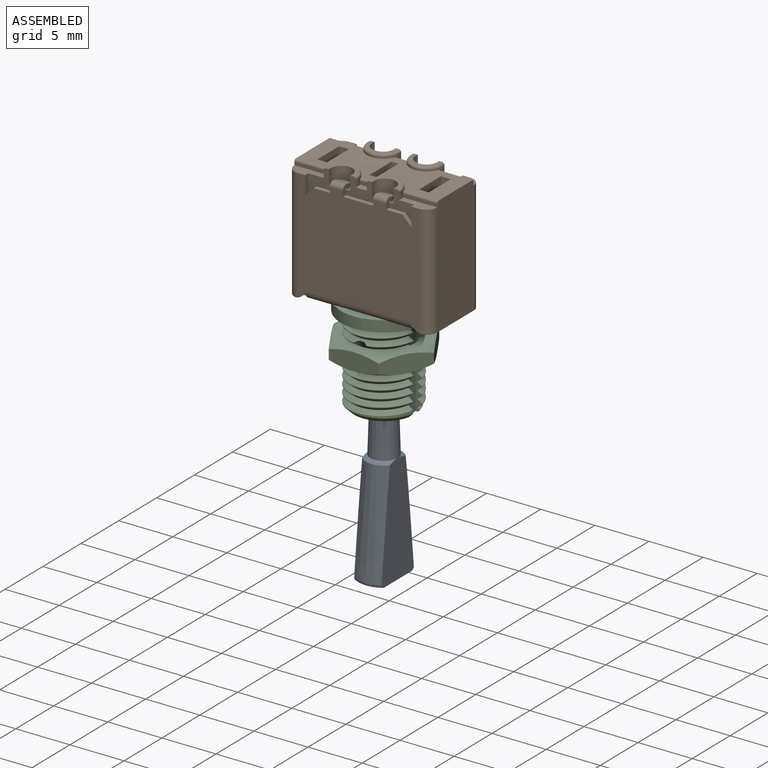
[diagram: assembled view]
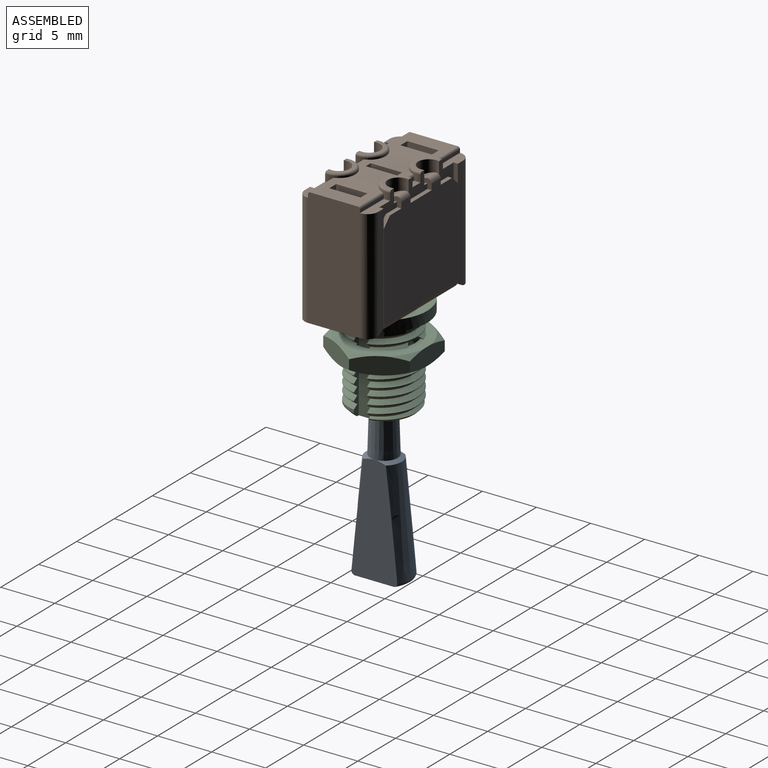
[diagram: assembled view, second angle]
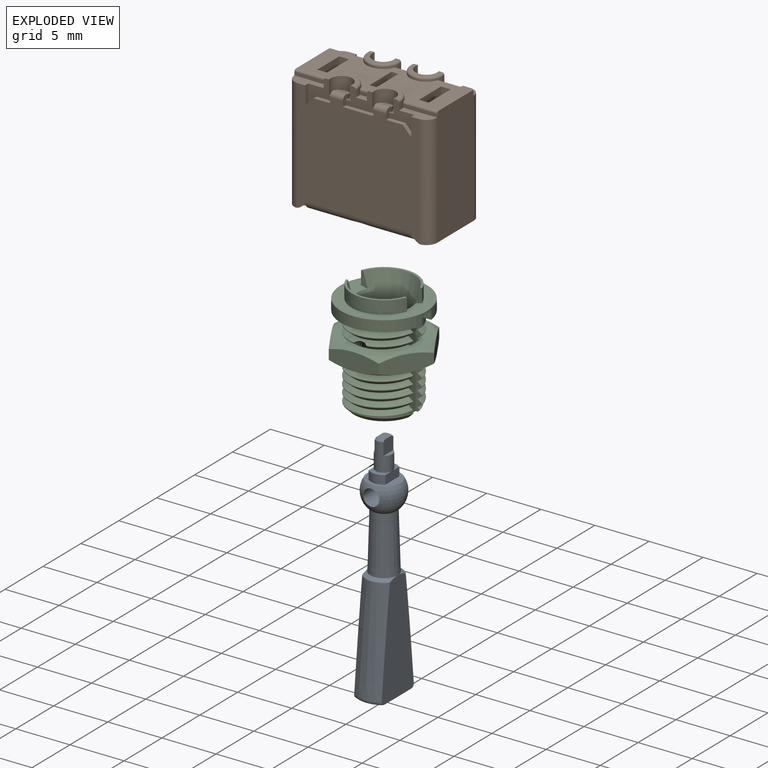
[diagram: exploded view]
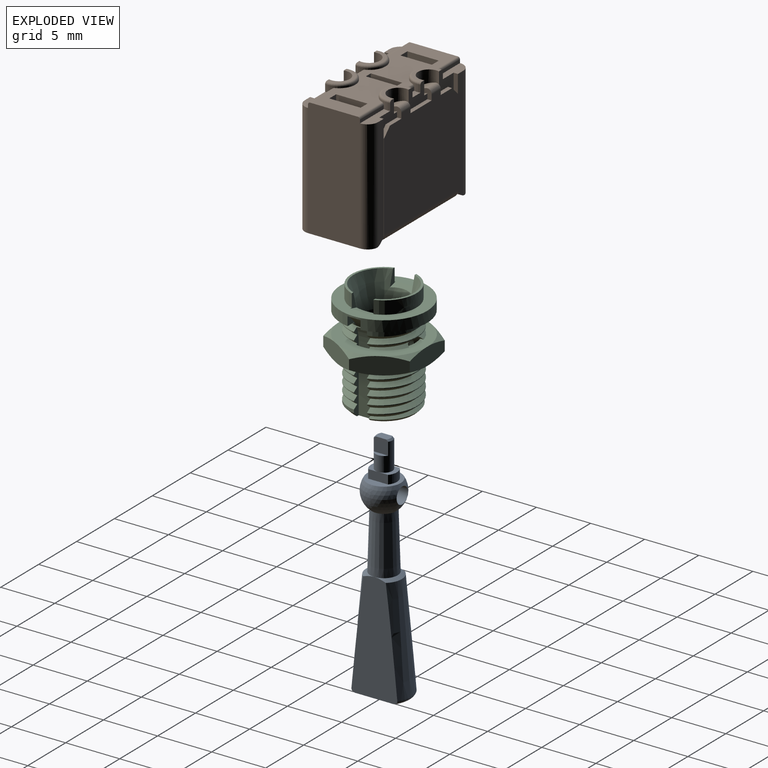
[diagram: exploded view, second angle]
ASSEMBLY  parts=3 mates=2
PART A: 27 faces, bbox 4.7x22.3x6.3 mm
  f0: torus R=2.17mm, axis (0,-1,0), area 1.3mm2, adj f20,f21,f22,f23
  f1: torus R=2.17mm, axis (0,-1,0), area 1.3mm2, adj f20,f21,f22,f25
  f2: cone r=0.7mm half-angle=45deg, axis (0,1,0), area 0.2mm2, adj f4,f5,f8,f9
  f3: cone r=0.7mm half-angle=45deg, axis (0,1,0), area 0.2mm2, adj f4,f5,f8,f9
  f4: cylinder r=0.78mm len=2.55mm, axis (0,1,0), area 8.8mm2, adj f2,f3,f5,f6,f7,f8,f10,f11
  f5: plane 1.34x1.31mm, normal (1,0,0), area 1.7mm2, adj f2,f3,f4,f6,f9
  f6: plane 1.33x0.38mm, normal (0,-1,0), area 0.4mm2, adj f4,f5
  f7: plane 1.33x0.38mm, normal (0,-1,0), area 0.4mm2, adj f4,f8
  f8: plane 1.34x1.31mm, normal (-1,0,0), area 1.7mm2, adj f2,f3,f4,f7,f9
  f9: plane 1.25x0.8mm, normal (0,-1,0), area 0.9mm2, adj f2,f3,f5,f8
  f10: plane 1.55x1.2mm, normal (0,-1,0), area 0.8mm2, adj f4,f12,f14,f15
  f11: plane 1.55x1.2mm, normal (0,-1,0), area 0.8mm2, adj f4,f12,f13,f14
  f12: plane 1.83x0.8mm, normal (1,0,0), area 1.5mm2, adj f10,f11,f13,f15,f16
  f13: cylinder r=1.2mm len=1.55mm, axis (0,1,0), area 1.3mm2, adj f11,f12,f14,f16
  f14: plane 1.83x0.8mm, normal (-1,0,0), area 1.5mm2, adj f10,f11,f13,f15,f16
  f15: cylinder r=1.2mm len=1.55mm, axis (0,1,0), area 1.3mm2, adj f10,f12,f14,f16
  f16: plane 3.11x3.11mm, normal (0,-1,0), area 4.2mm2, adj f12,f13,f14,f15,f17
  f17: sphere r=1.85mm, area 25.1mm2, adj f16,f18,f26
  f18: cone r=1.19mm half-angle=1.7deg, axis (0,1,0), area 39.6mm2, adj f17,f19,f24
  f19: cone r=1.46mm half-angle=60deg, axis (0,1,0), area 1.5mm2, adj f18,f20,f21,f25
  f20: plane 11.07x5.16mm, normal (1,0,0), area 32.6mm2, adj f0,f1,f19,f22,f23,f24,f25
  f21: plane 11.07x5.16mm, normal (-1,0,0), area 32.6mm2, adj f0,f1,f19,f22,f23,f24,f25
  f22: plane 4.35x2.54mm, normal (0,1,0), area 10.4mm2, adj f0,f1,f20,f21
  f23: cone r=2.06mm half-angle=4.9deg, axis (0,1,0), area 27.7mm2, adj f0,f20,f21,f24
  f24: cone r=1.46mm half-angle=60deg, axis (0,1,0), area 1.5mm2, adj f18,f20,f21,f23
  f25: cone r=2.06mm half-angle=4.9deg, axis (0,1,0), area 27.7mm2, adj f1,f19,f20,f21
  f26: cylinder r=0.75mm len=3.38mm, axis (0,0,-1), area 15.9mm2, adj f17
PART B: 228 faces, bbox 13.7x11.8x7.3 mm
  f0: plane 6.8x1.55mm, normal (0,1,0), area 2.9mm2, adj f1,f209,f210,f211,f212,f213,f214,f215
  f1: plane 0.83x0.41mm, normal (1,0,0), area 0.3mm2, adj f0,f2,f206,f207,f208,f227
  f2: plane 5.25x4.29mm, normal (0,-1,0), area 17.2mm2, adj f1,f3,f196,f197,f198,f199,f200,f201
  f3: plane 0.4x0.03mm, normal (0,0,1), area 0mm2, adj f2,f4,f196,f205
  f4: plane 2x0.5mm, normal (0,1,0), area 1mm2, adj f3,f5,f6,f202,f203,f204,f205
  f5: plane 0.22x0mm, normal (0,1,0), area 0mm2, adj f4,f6
  f6: plane 5.25x2.49mm, normal (0,1,0), area 5.7mm2, adj f4,f5,f7,f196,f201,f207,f208
  f7: cylinder r=0.8mm len=9.8mm, axis (1,0,0), area 11.1mm2, adj f6,f8,f187,f190,f191,f192,f193,f194
  f8: plane 5.25x2.49mm, normal (0,1,0), area 5.7mm2, adj f7,f9,f184,f185,f186,f195,f208
  f9: cylinder r=3.03mm len=1.63mm, axis (0,-1,0), area 0.9mm2, adj f8,f10,f15,f181
  f10: plane 0.4x0.03mm, normal (0,0,-1), area 0mm2, adj f9,f11,f15,f185
  f11: plane 0.4x0.33mm, normal (0,0,-1), area 0.1mm2, adj f10,f12,f15,f185
  f12: plane 2x0.4mm, normal (1,0,0), area 0.8mm2, adj f11,f13,f15,f185
  f13: plane 0.4x0.33mm, normal (0,0,1), area 0.1mm2, adj f12,f14,f15,f185
  f14: plane 0.4x0.03mm, normal (0,0,1), area 0mm2, adj f13,f15,f185,f186
  f15: plane 5.25x4.29mm, normal (0,-1,0), area 17.2mm2, adj f9,f10,f11,f12,f13,f14,f16,f176
  f16: plane 0.83x0.41mm, normal (-1,0,0), area 0.3mm2, adj f15,f17,f176,f195,f208,f227
  f17: plane 6.8x1.55mm, normal (0,1,0), area 2.9mm2, adj f16,f18,f164,f165,f166,f167,f168,f169
  f18: cylinder r=2mm len=1.6mm, axis (0,0,1), area 1.5mm2, adj f17,f19,f20,f225,f227
  f19: plane 5.7x0.9mm, normal (0,1,0), area 5.1mm2, adj f18,f20,f225,f226
  f20: plane 10.67x9.82mm, normal (0,0,-1), area 92.7mm2, adj f18,f19,f21,f129,f130,f131,f132,f133
  f21: plane 3.14x1mm, normal (0,-1,0), area 2.3mm2, adj f20,f22,f128,f133,f163,f174
  f22: cylinder r=1mm len=10.45mm, axis (0,-1,0), area 16.4mm2, adj f21,f23,f127,f173,f174
  f23: plane 6.76x0.79mm, normal (0,1,0), area 4mm2, adj f22,f24,f127,f169,f170,f171,f172,f173
  f24: cylinder r=1mm len=10.45mm, axis (0,-1,0), area 16.4mm2, adj f23,f25,f127,f168,f169
  f25: plane 3.14x1mm, normal (0,-1,0), area 2.3mm2, adj f24,f26,f124,f125,f126,f168
  f26: plane 10.67x9.82mm, normal (0,0,1), area 92.7mm2, adj f25,f27,f94,f95,f96,f97,f98,f99
  f27: plane 3.14x1mm, normal (0,-1,0), area 2.3mm2, adj f26,f28,f93,f98,f105,f216
  f28: cylinder r=1mm len=10.45mm, axis (0,-1,0), area 16.4mm2, adj f27,f29,f31,f215,f216
  f29: plane 6.76x0.79mm, normal (0,1,0), area 4mm2, adj f28,f30,f31,f211,f212,f213,f214,f215
  f30: cylinder r=1mm len=10.45mm, axis (0,-1,0), area 16.4mm2, adj f29,f31,f140,f210,f211
  f31: plane 10.95x4.8mm, normal (1,0,0), area 52.5mm2, adj f28,f29,f30,f32,f33,f91,f92,f93
  f32: cylinder r=0.2mm len=3.2mm, axis (-1,0,0), area 1mm2, adj f31,f33,f92,f139
  f33: plane 13.2x4.4mm, normal (0,-1,0), area 43.3mm2, adj f31,f32,f34,f74,f75,f76,f77,f78
  f34: plane 2.9x2.35mm, normal (-1,0,0), area 3.2mm2, adj f33,f35,f36,f37,f38,f74,f76
  f35: cylinder r=1mm len=1.85mm, axis (0,1,0), area 1mm2, adj f34,f36,f38
  f36: plane 2.44x2.34mm, normal (-0.97,0.26,0), area 1.4mm2, adj f34,f35,f37,f38
  f37: cylinder r=1mm len=1.85mm, axis (0,1,0), area 1mm2, adj f34,f36,f38
  f38: plane 4.2x1.65mm, normal (0,1,0), area 6.6mm2, adj f34,f35,f36,f37,f39,f43,f73,f221
  f39: plane 1.48x0.65mm, normal (1,0,0), area 0.7mm2, adj f38,f40,f225
  f40: cylinder r=2mm len=1.55mm, axis (-1,0,0), area 2.4mm2, adj f39,f41,f76,f164,f165,f225
  f41: plane 2.9x0.65mm, normal (0,1,0), area 1.9mm2, adj f40,f42,f75,f165
  f42: cylinder r=2mm len=1.55mm, axis (1,0,0), area 2.4mm2, adj f41,f73,f74,f165,f166,f221
  f43: plane 4.2x0.39mm, normal (-1,0,0), area 1.6mm2, adj f38,f44,f221,f225
  f44: plane 4.27x0.87mm, normal (-0.26,0.97,0), area 2.6mm2, adj f43,f45,f46,f47,f48,f49
  f45: cylinder r=7.8mm len=2.84mm, axis (-1,0,0), area 0.6mm2, adj f44,f46,f49,f221
  f46: torus R=7.2mm, axis (1,0,0), area 2.1mm2, adj f44,f45,f221
  f47: torus R=7.2mm, axis (-1,0,0), area 2.1mm2, adj f44,f48,f225
  f48: cylinder r=7.8mm len=2.84mm, axis (1,0,0), area 0.6mm2, adj f44,f47,f49,f225
  f49: plane 4.2x3.69mm, normal (1,0,0), area 5.9mm2, adj f44,f45,f48,f50,f221,f225
  f50: plane 4.2x3.6mm, normal (0,1,0), area 12.5mm2, adj f49,f51,f52,f53,f54,f55,f56,f57
  f51: cylinder r=1mm len=1.55mm, axis (0,1,0), area 0.7mm2, adj f50,f52,f81
  f52: plane 2.4x1.98mm, normal (0.97,0.26,0), area 1.3mm2, adj f50,f51,f53,f81
  f53: cylinder r=1mm len=1.55mm, axis (0,1,0), area 0.7mm2, adj f50,f52,f81
  f54: cylinder r=1mm len=1.55mm, axis (0,-1,0), area 0.7mm2, adj f50,f55,f83
  f55: plane 2.4x1.98mm, normal (-0.97,0.26,0), area 1.3mm2, adj f50,f54,f56,f83
  f56: cylinder r=1mm len=1.55mm, axis (0,-1,0), area 0.7mm2, adj f50,f55,f83
  f57: plane 4.2x3.69mm, normal (-1,0,0), area 5.9mm2, adj f50,f58,f71,f72,f221,f225
  f58: plane 4.27x0.87mm, normal (0.26,0.97,0), area 2.6mm2, adj f57,f59,f69,f70,f71,f72
  f59: plane 4.2x0.39mm, normal (1,0,0), area 1.6mm2, adj f58,f60,f221,f225
  f60: plane 4.2x1.65mm, normal (0,1,0), area 6.6mm2, adj f59,f61,f62,f63,f64,f68,f77,f221
  f61: cylinder r=1mm len=1.85mm, axis (0,-1,0), area 1mm2, adj f60,f62,f77
  f62: plane 2.44x2.34mm, normal (0.97,0.26,0), area 1.4mm2, adj f60,f61,f63,f77
  f63: cylinder r=1mm len=1.85mm, axis (0,-1,0), area 1mm2, adj f60,f62,f77
  f64: plane 1.48x0.65mm, normal (-1,0,0), area 0.7mm2, adj f60,f65,f221
  f65: cylinder r=2mm len=1.55mm, axis (1,0,0), area 2.4mm2, adj f64,f66,f80,f221,f222,f223
  f66: plane 2.9x0.65mm, normal (0,1,0), area 1.9mm2, adj f65,f67,f79,f223
  f67: cylinder r=2mm len=1.55mm, axis (-1,0,0), area 2.4mm2, adj f66,f68,f78,f223,f224,f225
  f68: plane 1.48x0.65mm, normal (-1,0,0), area 0.7mm2, adj f60,f67,f225
  f69: torus R=7.2mm, axis (1,0,0), area 2.1mm2, adj f58,f71,f221
  f70: torus R=7.2mm, axis (-1,0,0), area 2.1mm2, adj f58,f72,f225
  f71: cylinder r=7.8mm len=2.84mm, axis (-1,0,0), area 0.6mm2, adj f57,f58,f69,f221
  f72: cylinder r=7.8mm len=2.84mm, axis (1,0,0), area 0.6mm2, adj f57,f58,f70,f225
  f73: plane 1.48x0.65mm, normal (1,0,0), area 0.7mm2, adj f38,f42,f221
  f74: plane 2.35x0.9mm, normal (0,0,-1), area 2.1mm2, adj f33,f34,f42,f75
  f75: plane 2.9x2.35mm, normal (1,0,0), area 6.8mm2, adj f33,f41,f74,f76
  f76: plane 2.35x0.9mm, normal (0,0,1), area 2.1mm2, adj f33,f34,f40,f75
  f77: plane 2.9x2.35mm, normal (1,0,0), area 3.2mm2, adj f33,f60,f61,f62,f63,f78,f80
  f78: plane 2.35x0.9mm, normal (0,0,1), area 2.1mm2, adj f33,f67,f77,f79
  f79: plane 2.9x2.35mm, normal (-1,0,0), area 6.8mm2, adj f33,f66,f78,f80
  f80: plane 2.35x0.9mm, normal (0,0,-1), area 2.1mm2, adj f33,f65,f77,f79
  f81: plane 2.9x2.05mm, normal (1,0,0), area 2.9mm2, adj f33,f50,f51,f52,f53,f82,f84
  f82: plane 2.05x0.65mm, normal (0,0,1), area 1.3mm2, adj f33,f50,f81,f83
  f83: plane 2.9x2.05mm, normal (-1,0,0), area 2.9mm2, adj f33,f50,f54,f55,f56,f82,f84
  f84: plane 2.05x0.65mm, normal (0,0,-1), area 1.3mm2, adj f33,f50,f81,f83
  f85: cylinder r=0.2mm len=3.2mm, axis (1,0,0), area 1mm2, adj f33,f124,f125,f127
  f86: cylinder r=0.2mm len=1.21mm, axis (1,0,0), area 0.4mm2, adj f33,f87,f98,f124
  f87: plane 1.08x0.3mm, normal (0,0,1), area 0.3mm2, adj f86,f98,f99,f124
  f88: cylinder r=0.2mm len=1.21mm, axis (-1,0,0), area 0.4mm2, adj f33,f89,f133,f139
  f89: plane 1.08x0.3mm, normal (0,0,-1), area 0.3mm2, adj f88,f133,f134,f139
  f90: cylinder r=0.2mm len=3.2mm, axis (-1,0,0), area 1mm2, adj f33,f127,f128,f133
  f91: cylinder r=0.2mm len=3.2mm, axis (1,0,0), area 1mm2, adj f31,f33,f93,f98
  f92: plane 3.14x0.3mm, normal (0,0,-1), area 0.9mm2, adj f31,f32,f139,f140
  f93: plane 3.14x0.3mm, normal (0,0,1), area 0.9mm2, adj f27,f31,f91,f98
  f94: plane 2.16x1.39mm, normal (0,-0.97,-0.26), area 2.1mm2, adj f26,f95
  f95: cylinder r=1mm len=2mm, axis (0,1,0), area 5.2mm2, adj f26,f94,f96
  f96: plane 2.6x1.55mm, normal (0,-1,0), area 1.2mm2, adj f26,f95,f97
  f97: torus R=1.3mm, axis (0,-1,0), area 1.6mm2, adj f26,f96,f98
  f98: cylinder r=1.5mm len=3mm, axis (0,1,0), area 1.4mm2, adj f26,f27,f33,f86,f87,f91,f93,f97
  f99: plane 1.08x0.6mm, normal (0,-1,0), area 0.6mm2, adj f26,f87,f98,f124
  f100: plane 2.16x1.39mm, normal (0,-0.97,-0.26), area 2.1mm2, adj f26,f101
  f101: cylinder r=1mm len=2mm, axis (0,1,0), area 5.2mm2, adj f26,f100,f102
  f102: plane 2.6x1.55mm, normal (0,-1,0), area 1.2mm2, adj f26,f101,f103
  f103: torus R=1.3mm, axis (0,-1,0), area 1.6mm2, adj f26,f102,f124
  f104: plane 5.7x0.9mm, normal (0,1,0), area 5.1mm2, adj f26,f167,f220,f221
  f105: plane 9.8x0.4mm, normal (-1,0,0), area 0.9mm2, adj f26,f27,f106,f123,f216,f219
  f106: plane 9.8x9.31mm, normal (0,0,-1), area 86.8mm2, adj f105,f107,f111,f112,f113,f117,f118,f119
  f107: plane 1.2x0.83mm, normal (0,0.97,0.26), area 0.9mm2, adj f106,f108,f111,f122
  f108: cylinder r=0.6mm len=1.2mm, axis (0,-0.97,-0.26), area 0.8mm2, adj f107,f109,f111,f122
  f109: plane 1.2x0.83mm, normal (0,-0.97,-0.26), area 0.9mm2, adj f108,f110,f111,f122
  f110: cylinder r=0.4mm len=1.2mm, axis (-1,0,0), area 0.9mm2, adj f109,f111,f122,f191
  f111: plane 0.91x0.75mm, normal (1,0,0), area 0.5mm2, adj f106,f107,f108,f109,f110,f112,f191
  f112: plane 2.8x0.4mm, normal (0,-1,0), area 1.1mm2, adj f106,f111,f113,f191
  f113: plane 0.91x0.75mm, normal (-1,0,0), area 0.5mm2, adj f106,f112,f114,f115,f116,f117,f191
  f114: cylinder r=0.4mm len=1.2mm, axis (-1,0,0), area 0.9mm2, adj f113,f115,f118,f191
  f115: plane 1.2x0.83mm, normal (0,-0.97,-0.26), area 0.9mm2, adj f113,f114,f116,f118
  f116: cylinder r=0.6mm len=1.2mm, axis (0,0.97,0.26), area 0.8mm2, adj f113,f115,f117,f118
  f117: plane 1.2x0.83mm, normal (0,0.97,0.26), area 0.9mm2, adj f106,f113,f116,f118
  f118: plane 0.91x0.75mm, normal (1,0,0), area 0.5mm2, adj f106,f114,f115,f116,f117,f119,f191
  f119: plane 1.5x0.4mm, normal (0,-1,0), area 0.6mm2, adj f106,f118,f123,f191
  f120: plane 0.8x0.8mm, normal (-0.71,-0.71,0), area 0.5mm2, adj f106,f121,f126,f191,f192
  f121: plane 1.5x0.4mm, normal (0,-1,0), area 0.6mm2, adj f106,f120,f122,f191
  f122: plane 0.91x0.75mm, normal (-1,0,0), area 0.5mm2, adj f106,f107,f108,f109,f110,f121,f191
  f123: plane 0.8x0.8mm, normal (0.71,-0.71,0), area 0.5mm2, adj f105,f106,f119,f190,f191
  f124: cylinder r=1.5mm len=3mm, axis (0,1,0), area 1.4mm2, adj f25,f26,f33,f85,f86,f87,f99,f103
  f125: plane 3.14x0.3mm, normal (0,0,1), area 0.9mm2, adj f25,f85,f124,f127
  f126: plane 9.8x0.4mm, normal (1,0,0), area 0.9mm2, adj f25,f26,f106,f120,f168,f219
  f127: plane 10.95x4.8mm, normal (-1,0,0), area 52.5mm2, adj f22,f23,f24,f33,f85,f90,f125,f128
  f128: plane 3.14x0.3mm, normal (0,0,-1), area 0.9mm2, adj f21,f90,f127,f133
  f129: plane 2.16x1.39mm, normal (0,-0.97,0.26), area 2.1mm2, adj f20,f130
  f130: cylinder r=1mm len=2mm, axis (0,1,0), area 5.2mm2, adj f20,f129,f131
  f131: plane 2.6x1.55mm, normal (0,-1,0), area 1.2mm2, adj f20,f130,f132
  f132: torus R=1.3mm, axis (0,-1,0), area 1.6mm2, adj f20,f131,f133
  f133: cylinder r=1.5mm len=3mm, axis (0,1,0), area 1.4mm2, adj f20,f21,f33,f88,f89,f90,f128,f132
  f134: plane 1.08x0.6mm, normal (0,-1,0), area 0.6mm2, adj f20,f89,f133,f139
  f135: plane 2.16x1.39mm, normal (0,-0.97,0.26), area 2.1mm2, adj f20,f136
  f136: cylinder r=1mm len=2mm, axis (0,1,0), area 5.2mm2, adj f20,f135,f137
  f137: plane 2.6x1.55mm, normal (0,-1,0), area 1.2mm2, adj f20,f136,f138
  f138: torus R=1.3mm, axis (0,-1,0), area 1.6mm2, adj f20,f137,f139
  f139: cylinder r=1.5mm len=3mm, axis (0,1,0), area 1.4mm2, adj f20,f32,f33,f88,f89,f92,f134,f138
  f140: plane 3.14x1mm, normal (0,-1,0), area 2.3mm2, adj f20,f30,f92,f139,f141,f210
  f141: plane 9.8x0.4mm, normal (-1,0,0), area 0.9mm2, adj f20,f140,f142,f162,f210,f227
  f142: plane 0.8x0.8mm, normal (0.71,-0.71,0), area 0.5mm2, adj f141,f143,f160,f161,f162
  f143: plane 9.8x9.31mm, normal (0,0,-1), area 86.8mm2, adj f142,f144,f148,f149,f150,f154,f155,f156
  f144: cylinder r=0.4mm len=1.2mm, axis (1,0,0), area 0.9mm2, adj f143,f145,f148,f159
  f145: plane 1.2x0.83mm, normal (0,-0.97,0.26), area 0.9mm2, adj f144,f146,f148,f159
  f146: cylinder r=0.6mm len=1.2mm, axis (0,0.97,-0.26), area 0.8mm2, adj f145,f147,f148,f159
  f147: plane 1.2x0.83mm, normal (0,0.97,-0.26), area 0.9mm2, adj f146,f148,f159,f162
  f148: plane 0.91x0.75mm, normal (1,0,0), area 0.5mm2, adj f143,f144,f145,f146,f147,f149,f162
  f149: plane 2.8x0.4mm, normal (0,-1,0), area 1.1mm2, adj f143,f148,f150,f162
  f150: plane 0.9x0.76mm, normal (-1,0,0), area 0.5mm2, adj f143,f149,f151,f152,f153,f154,f162
  f151: plane 1.2x0.84mm, normal (0,0.97,-0.26), area 0.9mm2, adj f150,f152,f155,f162
  f152: cylinder r=0.6mm len=1.2mm, axis (0,-0.97,0.26), area 0.8mm2, adj f150,f151,f153,f155
  f153: plane 1.2x0.84mm, normal (0,-0.97,0.26), area 0.9mm2, adj f150,f152,f154,f155
  f154: cylinder r=0.4mm len=1.2mm, axis (1,0,0), area 0.9mm2, adj f143,f150,f153,f155
  f155: plane 0.9x0.76mm, normal (1,0,0), area 0.5mm2, adj f143,f151,f152,f153,f154,f160,f162
  f156: plane 8.2x0.03mm, normal (-1,0,0), area 0.2mm2, adj f143,f157,f174,f208
  f157: plane 0.8x0.8mm, normal (-0.71,-0.71,0), area 0.5mm2, adj f143,f156,f158,f162,f163
  f158: plane 1.5x0.4mm, normal (0,-1,0), area 0.6mm2, adj f143,f157,f159,f162
  f159: plane 0.91x0.75mm, normal (-1,0,0), area 0.5mm2, adj f143,f144,f145,f146,f147,f158,f162
  f160: plane 1.5x0.4mm, normal (0,-1,0), area 0.6mm2, adj f142,f143,f155,f162
  f161: plane 8.2x0.03mm, normal (1,0,0), area 0.2mm2, adj f142,f143,f208,f210
  f162: plane 9.8x9.31mm, normal (0,0,1), area 86.8mm2, adj f141,f142,f147,f148,f149,f150,f151,f155
  f163: plane 9.8x0.4mm, normal (1,0,0), area 0.9mm2, adj f20,f21,f157,f162,f174,f227
  f164: plane 7.51x0.57mm, normal (0.71,0,0.71), area 5mm2, adj f17,f40,f165,f225
  f165: plane 8.2x3.2mm, normal (1,0,0), area 26.1mm2, adj f17,f40,f41,f42,f164,f166
  f166: plane 7.51x0.57mm, normal (0.71,0,-0.71), area 5mm2, adj f17,f42,f165,f221
  f167: cylinder r=2mm len=1.6mm, axis (0,0,1), area 1.5mm2, adj f17,f26,f104,f219,f221
  f168: plane 10.41x0.7mm, normal (0,0,1), area 7.1mm2, adj f17,f24,f25,f126,f169,f192,f193
  f169: cylinder r=1mm len=0.88mm, axis (0,0,1), area 0.7mm2, adj f17,f23,f24,f168,f170
  f170: plane 0.9x0.4mm, normal (0,0,-1), area 0.3mm2, adj f17,f23,f169,f171
  f171: plane 5.04x0.4mm, normal (1,0,0), area 2mm2, adj f17,f23,f170,f172
  f172: plane 0.9x0.4mm, normal (0,0,1), area 0.3mm2, adj f17,f23,f171,f173
  f173: cylinder r=1mm len=0.88mm, axis (0,0,1), area 0.7mm2, adj f17,f22,f23,f172,f174
  f174: plane 10.41x0.7mm, normal (0,0,-1), area 7.1mm2, adj f17,f21,f22,f156,f163,f173,f175
  f175: plane 0.19x0.07mm, normal (1,0,0), area 0mm2, adj f17,f174,f208
  f176: plane 0.4x0.3mm, normal (0,0,-1), area 0.1mm2, adj f15,f16,f177,f195
  f177: plane 0.6x0.6mm, normal (-0.71,0,-0.71), area 0.3mm2, adj f15,f176,f178,f195
  f178: plane 3.79x0.4mm, normal (-1,0,0), area 1.5mm2, adj f15,f177,f179,f195
  f179: plane 0.6x0.6mm, normal (-0.71,0,0.71), area 0.3mm2, adj f15,f178,f180,f195
  f180: plane 0.4x0.3mm, normal (0,0,1), area 0.1mm2, adj f15,f179,f194,f195
  f181: bspline ~3.03x0.57mm, area 1mm2, adj f9,f182,f201,f208,f227
  f182: bspline ~3.03x0.57mm, area 0mm2, adj f181,f183
  f183: cylinder r=0.4mm len=2.51mm, axis (1,0,0), area 6.3mm2, adj f182,f227
  f184: plane 0.22x0mm, normal (0,1,0), area 0mm2, adj f8,f185
  f185: plane 2x0.5mm, normal (0,1,0), area 1mm2, adj f8,f10,f11,f12,f13,f14,f184
  f186: cylinder r=3.03mm len=1.63mm, axis (0,-1,0), area 0.9mm2, adj f8,f14,f15,f187
  f187: bspline ~3.03x0.57mm, area 1mm2, adj f7,f186,f188,f196,f219
  f188: bspline ~3.03x0.57mm, area 0mm2, adj f187,f189
  f189: cylinder r=0.4mm len=2.51mm, axis (1,0,0), area 6.3mm2, adj f188,f219
  f190: plane 8.2x0.03mm, normal (1,0,0), area 0.2mm2, adj f7,f123,f191,f216
  f191: plane 9.8x9.31mm, normal (0,0,1), area 86.8mm2, adj f7,f110,f111,f112,f113,f114,f118,f119
  f192: plane 8.2x0.03mm, normal (-1,0,0), area 0.2mm2, adj f7,f120,f168,f191
  f193: plane 0.19x0.07mm, normal (1,0,0), area 0mm2, adj f7,f17,f168
  f194: plane 0.83x0.41mm, normal (-1,0,0), area 0.3mm2, adj f7,f15,f17,f180,f195,f219
  f195: plane 5.25x2.78mm, normal (0,1,0), area 10.5mm2, adj f7,f8,f16,f176,f177,f178,f179,f180
  f196: cylinder r=3.03mm len=1.63mm, axis (0,-1,0), area 0.9mm2, adj f2,f3,f6,f187
  f197: plane 0.4x0.3mm, normal (0,0,1), area 0.1mm2, adj f2,f198,f207,f218
  f198: plane 0.6x0.6mm, normal (0.71,0,0.71), area 0.3mm2, adj f2,f197,f199,f207
  f199: plane 3.79x0.4mm, normal (1,0,0), area 1.5mm2, adj f2,f198,f200,f207
  f200: plane 0.6x0.6mm, normal (0.71,0,-0.71), area 0.3mm2, adj f2,f199,f206,f207
  f201: cylinder r=3.03mm len=1.63mm, axis (0,-1,0), area 0.9mm2, adj f2,f6,f181,f202
  f202: plane 0.4x0.03mm, normal (0,0,-1), area 0mm2, adj f2,f4,f201,f203
  f203: plane 0.4x0.33mm, normal (0,0,-1), area 0.1mm2, adj f2,f4,f202,f204
  f204: plane 2x0.4mm, normal (-1,0,0), area 0.8mm2, adj f2,f4,f203,f205
  f205: plane 0.4x0.33mm, normal (0,0,1), area 0.1mm2, adj f2,f3,f4,f204
  f206: plane 0.4x0.3mm, normal (0,0,-1), area 0.1mm2, adj f1,f2,f200,f207
  f207: plane 5.25x2.78mm, normal (0,1,0), area 10.5mm2, adj f1,f6,f7,f197,f198,f199,f200,f206
  f208: cylinder r=0.8mm len=9.8mm, axis (1,0,0), area 11.1mm2, adj f1,f6,f8,f16,f143,f156,f161,f175
  f209: plane 0.19x0.07mm, normal (-1,0,0), area 0mm2, adj f0,f208,f210
  f210: plane 10.41x0.7mm, normal (0,0,-1), area 7.1mm2, adj f0,f30,f140,f141,f161,f209,f211
  f211: cylinder r=1mm len=0.88mm, axis (0,0,1), area 0.7mm2, adj f0,f29,f30,f210,f212
  f212: plane 0.9x0.4mm, normal (0,0,1), area 0.3mm2, adj f0,f29,f211,f213
  f213: plane 5.04x0.4mm, normal (-1,0,0), area 2mm2, adj f0,f29,f212,f214
  f214: plane 0.9x0.4mm, normal (0,0,-1), area 0.3mm2, adj f0,f29,f213,f215
  f215: cylinder r=1mm len=0.88mm, axis (0,0,1), area 0.7mm2, adj f0,f28,f29,f214,f216
  f216: plane 10.41x0.7mm, normal (0,0,1), area 7.1mm2, adj f0,f27,f28,f105,f190,f215,f217
  f217: plane 0.19x0.07mm, normal (-1,0,0), area 0mm2, adj f0,f7,f216
  f218: plane 0.83x0.41mm, normal (1,0,0), area 0.3mm2, adj f0,f2,f7,f197,f207,f219
  f219: cylinder r=0.4mm len=9.8mm, axis (1,0,0), area 4.6mm2, adj f0,f2,f15,f17,f26,f105,f106,f126
  f220: cylinder r=2mm len=1.6mm, axis (0,0,1), area 1.5mm2, adj f0,f26,f104,f219,f221
  f221: plane 10.6x8.5mm, normal (0,0,-1), area 74.6mm2, adj f0,f17,f38,f42,f43,f45,f46,f49
  f222: plane 7.51x0.57mm, normal (-0.71,0,-0.71), area 5mm2, adj f0,f65,f221,f223
  f223: plane 8.2x3.2mm, normal (-1,0,0), area 26.1mm2, adj f0,f65,f66,f67,f222,f224
  f224: plane 7.51x0.57mm, normal (-0.71,0,0.71), area 5mm2, adj f0,f67,f223,f225
  f225: plane 10.6x8.5mm, normal (0,0,1), area 74.6mm2, adj f0,f17,f18,f19,f38,f39,f40,f43
  f226: cylinder r=2mm len=1.6mm, axis (0,0,1), area 1.5mm2, adj f0,f19,f20,f225,f227
  f227: cylinder r=0.4mm len=9.8mm, axis (1,0,0), area 4.6mm2, adj f0,f1,f2,f15,f16,f17,f18,f20
PART C: 116 faces, bbox 9.5x10.5x9.5 mm
  f0: cone r=3.01mm half-angle=60deg, axis (0,1,0), area 4.1mm2, adj f1,f109,f111,f112,f113,f114,f115
  f1: cylinder r=1.05mm len=0.24mm, axis (0,0,-1), area 0mm2, adj f0,f2,f113,f115
  f2: cone r=0.9mm half-angle=30deg, axis (0,0,-1), area 3.1mm2, adj f1,f3,f76,f77,f96,f97,f98,f99
  f3: cylinder r=1.05mm len=1.72mm, axis (0,0,-1), area 0.5mm2, adj f2,f4,f74,f75,f76,f107
  f4: cylinder r=3.17mm len=2.57mm, axis (0,1,0), area 0.2mm2, adj f3,f5,f74,f107
  f5: plane 7.47x0.63mm, normal (0,0,1), area 2.9mm2, adj f4,f6,f50,f51,f52,f53,f54,f55
  f6: bspline ~6.34x6.29mm, area 9.6mm2, adj f5,f7,f9,f10,f50,f74,f109
  f7: bspline ~2.92x2.88mm, area 1mm2, adj f6,f8,f10,f77,f109
  f8: cylinder r=1.05mm len=0.18mm, axis (0,0,-1), area 0mm2, adj f7,f10,f77
  f9: cylinder r=1.05mm len=1.09mm, axis (0,0,-1), area 0.1mm2, adj f6,f10
  f10: cone r=0.9mm half-angle=30deg, axis (0,0,1), area 3.1mm2, adj f6,f7,f8,f9,f11,f12,f13,f14
  f11: bspline ~5.94x3.43mm, area 1mm2, adj f10,f12,f99,f115
  f12: bspline ~5.92x3.13mm, area 1mm2, adj f10,f11,f98,f115
  f13: cylinder r=1.05mm len=0.27mm, axis (0,0,-1), area 0mm2, adj f10,f74,f77
  f14: bspline ~2.8x2.64mm, area 0.4mm2, adj f10,f15,f109,f115
  f15: bspline ~2.11x1.86mm, area 0.4mm2, adj f10,f14,f109,f115
  f16: bspline ~2.95x2.76mm, area 0.5mm2, adj f10,f17,f109,f115
  f17: bspline ~3.14x3.02mm, area 0.5mm2, adj f10,f16,f109,f115
  f18: cylinder r=0.75mm len=1.5mm, axis (0,0,-1), area 1.5mm2, adj f10,f19
  f19: cylinder r=2mm len=5.93mm, axis (0,1,0), area 70.9mm2, adj f18,f20,f21,f108
  f20: cone r=2.12mm half-angle=11deg, axis (0,1,0), area 17.5mm2, adj f19,f54
  f21: cone r=2.4mm half-angle=15deg, axis (0,-1,0), area 40.7mm2, adj f19,f22,f43,f44,f45,f46,f47,f48
  f22: cylinder r=10mm len=2mm, axis (0,0,1), area 1.4mm2, adj f21,f23,f24,f43,f49
  f23: cylinder r=10mm len=0.22mm, axis (0,0,1), area 0mm2, adj f22,f24
  f24: plane 5.25x2.49mm, normal (0,-1,0), area 5.7mm2, adj f22,f23,f25,f32,f38,f43,f49
  f25: plane 6.04x3mm, normal (0,-1,0), area 5.2mm2, adj f24,f26,f30,f32,f43,f45
  f26: cylinder r=3mm len=5.66mm, axis (0,1,0), area 8.5mm2, adj f25,f27,f28,f29,f43,f44,f45
  f27: cylinder r=3mm len=2.51mm, axis (0,1,0), area 0mm2, adj f26
  f28: plane 0.4x0.33mm, normal (0,0,-1), area 0.1mm2, adj f26,f43
  f29: plane 0.4x0.33mm, normal (0,0,-1), area 0.1mm2, adj f26,f45
  f30: plane 5.25x2.49mm, normal (0,-1,0), area 5.7mm2, adj f25,f31,f32,f38,f45,f46,f47
  f31: cylinder r=10mm len=0.22mm, axis (0,0,1), area 0mm2, adj f30,f46
  f32: cylinder r=4mm len=8mm, axis (0,1,0), area 24.1mm2, adj f24,f25,f30,f33,f37,f38,f52,f109
  f33: plane 1.17x1.11mm, normal (0,0,1), area 0.4mm2, adj f32,f34,f36,f37,f52
  f34: bspline ~6.35x6.35mm, area 10mm2, adj f33,f35,f36,f51,f52,f109
  f35: plane 0.1x0.09mm, normal (0,0,-1), area 0mm2, adj f34,f51,f52
  f36: cylinder r=3.17mm len=6.35mm, axis (0,1,0), area 8.6mm2, adj f33,f34,f37,f109
  f37: plane 8x7.95mm, normal (0,1,0), area 17.6mm2, adj f32,f33,f36,f109
  f38: plane 6.04x3mm, normal (0,-1,0), area 5.2mm2, adj f24,f30,f32,f39,f47,f49
  f39: cylinder r=3mm len=5.66mm, axis (0,1,0), area 8.5mm2, adj f38,f40,f41,f42,f47,f48,f49
  f40: cylinder r=3mm len=2.51mm, axis (0,1,0), area 0mm2, adj f39
  f41: plane 0.4x0.33mm, normal (0,0,1), area 0.1mm2, adj f39,f47
  f42: plane 0.4x0.33mm, normal (0,0,1), area 0.1mm2, adj f39,f49
  f43: plane 1.45x0.83mm, normal (0,0,-1), area 0.4mm2, adj f21,f22,f24,f25,f26,f28,f44
  f44: plane 5.66x2mm, normal (0,-1,0), area 1.4mm2, adj f21,f26,f43,f45
  f45: plane 1.45x0.83mm, normal (0,0,-1), area 0.4mm2, adj f21,f25,f26,f29,f30,f44,f46
  f46: cylinder r=10mm len=2mm, axis (0,0,1), area 1.4mm2, adj f21,f30,f31,f45,f47
  f47: plane 1.45x0.83mm, normal (0,0,1), area 0.4mm2, adj f21,f30,f38,f39,f41,f46,f48
  f48: plane 5.66x2mm, normal (0,-1,0), area 1.4mm2, adj f21,f39,f47,f49
  f49: plane 1.45x0.83mm, normal (0,0,1), area 0.4mm2, adj f21,f22,f24,f38,f39,f42,f48
  f50: cylinder r=3.17mm len=6.35mm, axis (0,1,0), area 1mm2, adj f5,f6,f51,f109
  f51: bspline ~6.35x6.35mm, area 9.4mm2, adj f5,f34,f35,f50,f52,f109
  f52: cylinder r=3mm len=2.6mm, axis (0,0,1), area 3.7mm2, adj f5,f32,f33,f34,f35,f51,f53,f109
  f53: plane 6.25x1.2mm, normal (1,0,0), area 7.5mm2, adj f5,f52,f54,f109
  f54: plane 5.55x5.48mm, normal (0,1,0), area 8mm2, adj f5,f20,f53,f55,f109
  f55: cone r=2.98mm half-angle=45deg, axis (0,-1,0), area 8.3mm2, adj f5,f54,f56,f57,f109
  f56: cylinder r=3.17mm len=6.11mm, axis (0,1,0), area 1.2mm2, adj f5,f55,f57
  f57: bspline ~6.34x6.29mm, area 7.9mm2, adj f5,f55,f56,f58,f109
  f58: bspline ~6.34x6.29mm, area 9.9mm2, adj f5,f57,f59,f109
  f59: cylinder r=3.17mm len=6.35mm, axis (0,1,0), area 1mm2, adj f5,f58,f60,f109
  f60: bspline ~6.34x6.29mm, area 9.3mm2, adj f5,f59,f61,f109
  f61: bspline ~6.34x6.29mm, area 9.9mm2, adj f5,f60,f62,f109
  f62: cylinder r=3.17mm len=6.35mm, axis (0,1,0), area 1mm2, adj f5,f61,f63,f109
  f63: bspline ~6.34x6.29mm, area 9.3mm2, adj f5,f62,f64,f109
  f64: bspline ~6.34x6.29mm, area 9.9mm2, adj f5,f63,f65,f109
  f65: cylinder r=3.17mm len=6.35mm, axis (0,1,0), area 1mm2, adj f5,f64,f66,f68,f109
  f66: bspline ~4.71x2.66mm, area 3mm2, adj f65,f67,f68,f109
  f67: bspline ~4.71x2.66mm, area 3.2mm2, adj f66,f69,f70,f109
  f68: bspline ~6.29x5.92mm, area 6.3mm2, adj f5,f65,f66,f69
  f69: bspline ~6.29x5.92mm, area 6.7mm2, adj f5,f67,f68,f70
  f70: cylinder r=3.17mm len=6.35mm, axis (0,1,0), area 1mm2, adj f5,f67,f69,f71,f109
  f71: bspline ~6.34x6.29mm, area 9.3mm2, adj f5,f70,f72,f109
  f72: bspline ~6.34x6.29mm, area 9.9mm2, adj f5,f71,f73,f109
  f73: cylinder r=3.17mm len=6.35mm, axis (0,1,0), area 1mm2, adj f5,f72,f101,f109
  f74: bspline ~6.45x6.44mm, area 6.5mm2, adj f3,f4,f5,f6,f10,f13,f75,f77
  f75: cylinder r=3.17mm len=6.15mm, axis (0,1,0), area 0.4mm2, adj f3,f74,f76,f77
  f76: bspline ~5.42x2.56mm, area 1.3mm2, adj f2,f3,f75,f77
  f77: plane 8.07x8.04mm, normal (0,-1,0), area 23mm2, adj f2,f7,f8,f10,f13,f74,f75,f76
  f78: cone r=4.32mm half-angle=60deg, axis (0,1,0), area 1.3mm2, adj f77,f79,f95
  f79: plane 4.28x2.59mm, normal (0.87,0,-0.5), area 6.3mm2, adj f77,f78,f80,f81,f82,f83,f95,f112
  f80: cone r=4.32mm half-angle=60deg, axis (0,-1,0), area 1.3mm2, adj f79,f95,f112
  f81: cone r=4.32mm half-angle=60deg, axis (0,-1,0), area 1.3mm2, adj f79,f83,f112
  f82: cone r=4.32mm half-angle=60deg, axis (0,1,0), area 1.3mm2, adj f77,f79,f83
  f83: plane 4.89x1.88mm, normal (0,0,-1), area 6.3mm2, adj f77,f79,f81,f82,f84,f85,f86,f112
  f84: cone r=4.32mm half-angle=60deg, axis (0,-1,0), area 1.3mm2, adj f83,f86,f112
  f85: cone r=4.32mm half-angle=60deg, axis (0,1,0), area 1.3mm2, adj f77,f83,f86
  f86: plane 4.28x2.59mm, normal (-0.87,0,-0.5), area 6.3mm2, adj f77,f83,f84,f85,f87,f88,f89,f112
  f87: cone r=4.32mm half-angle=60deg, axis (0,-1,0), area 1.3mm2, adj f86,f89,f112
  f88: cone r=4.32mm half-angle=60deg, axis (0,1,0), area 1.3mm2, adj f77,f86,f89
  f89: plane 4.28x2.59mm, normal (-0.87,0,0.5), area 6.3mm2, adj f77,f86,f87,f88,f90,f91,f92,f112
  f90: cone r=4.32mm half-angle=60deg, axis (0,-1,0), area 1.3mm2, adj f89,f92,f112
  f91: cone r=4.32mm half-angle=60deg, axis (0,1,0), area 1.3mm2, adj f77,f89,f92
  f92: plane 4.89x1.88mm, normal (0,0,1), area 6.3mm2, adj f77,f89,f90,f91,f93,f94,f95,f112
  f93: cone r=4.32mm half-angle=60deg, axis (0,-1,0), area 1.3mm2, adj f92,f95,f112
  f94: cone r=4.32mm half-angle=60deg, axis (0,1,0), area 1.3mm2, adj f77,f92,f95
  f95: plane 4.28x2.59mm, normal (0.87,0,0.5), area 6.3mm2, adj f77,f78,f79,f80,f92,f93,f94,f112
  f96: bspline ~6.36x3.11mm, area 1.1mm2, adj f2,f10,f97,f115
  f97: bspline ~6.31x2.9mm, area 1mm2, adj f2,f10,f96,f115
  f98: bspline ~0.74x0.65mm, area 0.1mm2, adj f2,f12,f99,f115
  f99: bspline ~0.53x0.33mm, area 0.1mm2, adj f2,f11,f98,f115
  f100: cylinder r=1.05mm len=0.54mm, axis (0,0,-1), area 0mm2, adj f2,f101
  f101: bspline ~6.34x6.29mm, area 9.3mm2, adj f2,f5,f73,f100,f102,f109,f113
  f102: bspline ~3.23x3.02mm, area 0.5mm2, adj f2,f5,f101,f103,f115
  f103: cylinder r=1.05mm len=0.14mm, axis (0,0,-1), area 0mm2, adj f2,f102,f115
  f104: bspline ~2.88x2.7mm, area 0.4mm2, adj f2,f5,f105,f115
  f105: bspline ~2.84x2.56mm, area 0.4mm2, adj f2,f5,f104,f115
  f106: bspline ~2.8x2.64mm, area 0.4mm2, adj f2,f5,f107,f115
  f107: bspline ~2.6x2.58mm, area 1.9mm2, adj f2,f3,f4,f5,f106
  f108: cylinder r=0.75mm len=1.5mm, axis (0,0,-1), area 1.5mm2, adj f2,f19
  f109: plane 8.84x1.47mm, normal (0,0,-1), area 3.4mm2, adj f0,f6,f7,f14,f15,f16,f17,f32
  f110: cylinder r=3.17mm len=2.05mm, axis (0,1,0), area 0.1mm2, adj f109,f111,f112,f113
  f111: bspline ~1.06x0.57mm, area 0.1mm2, adj f0,f109,f110,f112
  f112: plane 8.03x8mm, normal (0,1,0), area 19.2mm2, adj f0,f79,f80,f81,f83,f84,f86,f87
  f113: bspline ~6.34x6.29mm, area 5.1mm2, adj f0,f1,f2,f101,f109,f110,f112,f114
  f114: cylinder r=1.05mm len=1.41mm, axis (0,0,-1), area 0.3mm2, adj f0,f10,f113,f115
  f115: cylinder r=2.86mm len=5.72mm, axis (0,-1,0), area 11.8mm2, adj f0,f1,f2,f5,f10,f11,f12,f14
PLACE A rot(axis=(-1,0,0),90deg) t=(-0.18,10.3,-4)mm
PLACE B rot(axis=(-1,0,0),90deg) t=(-0.18,10.3,-1.53)mm
PLACE C rot(axis=(-1,0,0),90deg) t=(-0.18,10.3,-1.32)mm
MATE fastened C.f0 <-> A.f19  axis (0,0,-1) through (-0.18,10.3,-9.05)mm
MATE fastened C.f0 <-> B.f201  axis (0,0,1) through (-0.18,10.3,-0.13)mm
